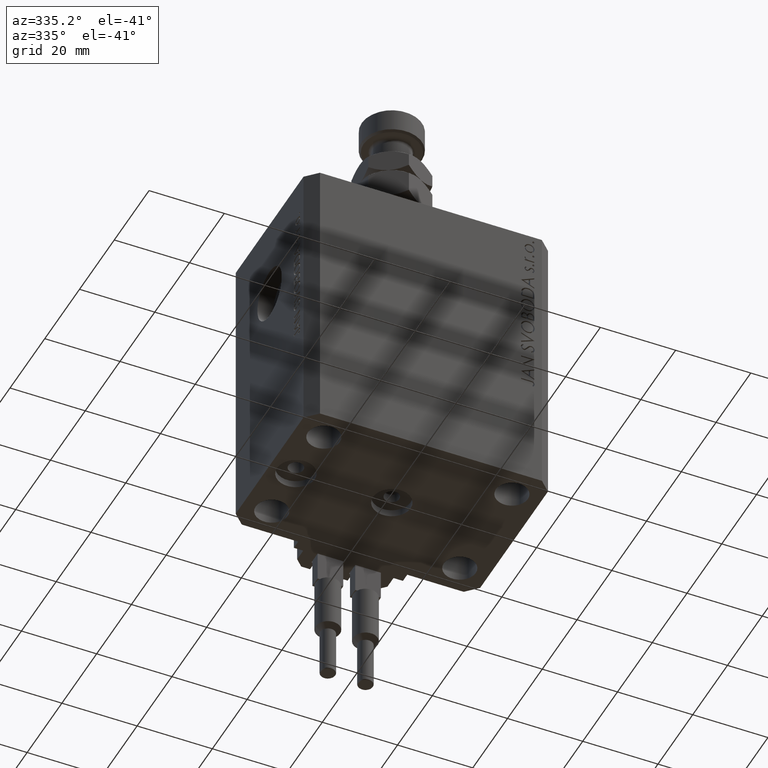
[diagram: clean part render]
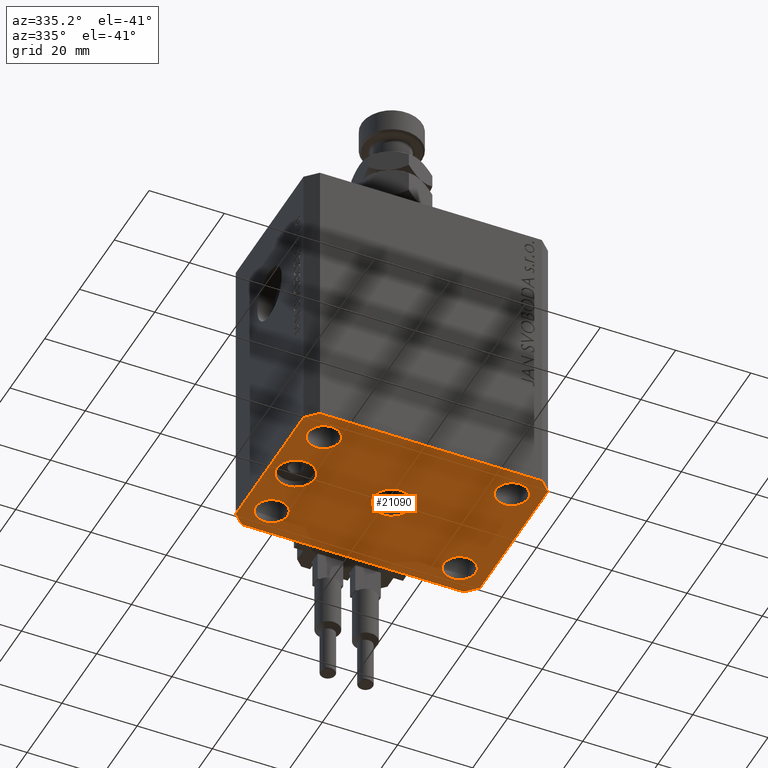
[diagram: same view with one face highlighted and labeled with its STEP entity id]
A machine part, auxiliary view. The second image highlights one B-rep face of the part: STEP entity #21090.
In plain terms, the highlighted planar face has unit normal (0, 0, 1).
Its self-contained STEP definition (entity closure, byte-faithful):
#51 = CIRCLE ( 'NONE', #33070, 4.999999999996659561 ) ;
#324 = CARTESIAN_POINT ( 'NONE',  ( 0.000000000000000000, 0.000000000000000000, -77.00000000000000000 ) ) ;
#368 = CARTESIAN_POINT ( 'NONE',  ( -20.74999999997862687, 14.99999999999999645, -77.00000000000000000 ) ) ;
#450 = PLANE ( 'NONE',  #46532 ) ;
#595 = ORIENTED_EDGE ( 'NONE', *, *, #40347, .F. ) ;
#802 = CARTESIAN_POINT ( 'NONE',  ( -24.99999999999999289, -15.00000000000000355, -77.00000000000000000 ) ) ;
#923 = ORIENTED_EDGE ( 'NONE', *, *, #10168, .F. ) ;
#1020 = VECTOR ( 'NONE', #2068, 1000.000000000000000 ) ;
#1206 = VERTEX_POINT ( 'NONE', #16178 ) ;
#1693 = DIRECTION ( 'NONE',  ( 0.7071067811865474617, -0.7071067811865474617, 0.000000000000000000 ) ) ;
#2068 = DIRECTION ( 'NONE',  ( -1.000000000000000000, -3.528251137580330676E-16, 0.000000000000000000 ) ) ;
#2454 = CARTESIAN_POINT ( 'NONE',  ( -25.00000000000000000, 14.99999999999999645, -77.00000000000000000 ) ) ;
#2710 = VERTEX_POINT ( 'NONE', #45243 ) ;
#3738 = ORIENTED_EDGE ( 'NONE', *, *, #12498, .F. ) ;
#3762 = EDGE_CURVE ( 'NONE', #33556, #30594, #42824, .T. ) ;
#4198 = ORIENTED_EDGE ( 'NONE', *, *, #13610, .F. ) ;
#4247 = DIRECTION ( 'NONE',  ( 0.000000000000000000, 0.000000000000000000, 1.000000000000000000 ) ) ;
#4544 = DIRECTION ( 'NONE',  ( -0.000000000000000000, -0.000000000000000000, -1.000000000000000000 ) ) ;
#4546 = DIRECTION ( 'NONE',  ( -0.7071067811865344721, 0.7071067811865606734, 0.000000000000000000 ) ) ;
#4797 = EDGE_CURVE ( 'NONE', #17378, #39997, #6584, .T. ) ;
#4870 = EDGE_CURVE ( 'NONE', #49466, #42473, #4951, .T. ) ;
#4951 = CIRCLE ( 'NONE', #17070, 5.000000000000000000 ) ;
#4988 = FACE_BOUND ( 'NONE', #34428, .T. ) ;
#5709 = DIRECTION ( 'NONE',  ( 0.000000000000000000, 0.000000000000000000, -1.000000000000000000 ) ) ;
#5865 = EDGE_LOOP ( 'NONE', ( #21011, #47484 ) ) ;
#5999 = DIRECTION ( 'NONE',  ( -0.000000000000000000, -0.000000000000000000, -1.000000000000000000 ) ) ;
#6139 = DIRECTION ( 'NONE',  ( 1.000000000000000000, 0.000000000000000000, 0.000000000000000000 ) ) ;
#6584 = CIRCLE ( 'NONE', #34781, 4.249999999976314058 ) ;
#6620 = CARTESIAN_POINT ( 'NONE',  ( 20.75000000004271072, 14.99999999999999289, -77.00000000000000000 ) ) ;
#6694 = ORIENTED_EDGE ( 'NONE', *, *, #17665, .F. ) ;
#6791 = DIRECTION ( 'NONE',  ( 1.000000000000000000, 0.000000000000000000, 0.000000000000000000 ) ) ;
#7183 = VERTEX_POINT ( 'NONE', #13056 ) ;
#7501 = LINE ( 'NONE', #49901, #30174 ) ;
#8092 = DIRECTION ( 'NONE',  ( -0.000000000000000000, -0.000000000000000000, -1.000000000000000000 ) ) ;
#8297 = VERTEX_POINT ( 'NONE', #20081 ) ;
#8408 = DIRECTION ( 'NONE',  ( -1.000000000000000000, 0.000000000000000000, 0.000000000000000000 ) ) ;
#8537 = FACE_BOUND ( 'NONE', #18745, .T. ) ;
#8826 = DIRECTION ( 'NONE',  ( 0.000000000000000000, -1.000000000000000000, 0.000000000000000000 ) ) ;
#8894 = VECTOR ( 'NONE', #8826, 1000.000000000000000 ) ;
#9602 = EDGE_LOOP ( 'NONE', ( #28885, #35729 ) ) ;
#10168 = EDGE_CURVE ( 'NONE', #23318, #32813, #13258, .T. ) ;
#10203 = EDGE_CURVE ( 'NONE', #1206, #30786, #7501, .T. ) ;
#10228 = VERTEX_POINT ( 'NONE', #18865 ) ;
#10287 = ORIENTED_EDGE ( 'NONE', *, *, #33214, .F. ) ;
#10569 = DIRECTION ( 'NONE',  ( -0.000000000000000000, -0.000000000000000000, -1.000000000000000000 ) ) ;
#11156 = VERTEX_POINT ( 'NONE', #35589 ) ;
#11571 = AXIS2_PLACEMENT_3D ( 'NONE', #20340, #47361, #24361 ) ;
#11622 = CARTESIAN_POINT ( 'NONE',  ( 24.99999999999999289, -15.00000000000000355, -77.00000000000000000 ) ) ;
#11665 = ORIENTED_EDGE ( 'NONE', *, *, #10203, .F. ) ;
#12498 = EDGE_CURVE ( 'NONE', #2710, #34445, #28695, .T. ) ;
#12996 = CARTESIAN_POINT ( 'NONE',  ( 29.24999999995729283, 14.99999999999999289, -77.00000000000000000 ) ) ;
#13056 = CARTESIAN_POINT ( 'NONE',  ( -32.49999999999650413, 19.49999999999949907, -77.00000000000000000 ) ) ;
#13079 = VERTEX_POINT ( 'NONE', #6620 ) ;
#13103 = DIRECTION ( 'NONE',  ( 0.000000000000000000, 0.000000000000000000, -1.000000000000000000 ) ) ;
#13258 = CIRCLE ( 'NONE', #23736, 4.250000000021375790 ) ;
#13540 = CARTESIAN_POINT ( 'NONE',  ( -25.50000000000000000, 0.000000000000000000, -77.00000000000000000 ) ) ;
#13610 = EDGE_CURVE ( 'NONE', #20271, #13079, #14778, .T. ) ;
#14000 = CARTESIAN_POINT ( 'NONE',  ( -29.25000000002137668, 14.99999999999999645, -77.00000000000000000 ) ) ;
#14631 = ORIENTED_EDGE ( 'NONE', *, *, #4870, .F. ) ;
#14778 = CIRCLE ( 'NONE', #11571, 4.249999999957291053 ) ;
#14793 = VECTOR ( 'NONE', #27824, 1000.000000000000000 ) ;
#15084 = DIRECTION ( 'NONE',  ( 0.7071067811865483499, 0.7071067811865466846, 0.000000000000000000 ) ) ;
#15317 = ORIENTED_EDGE ( 'NONE', *, *, #34997, .F. ) ;
#15555 = VECTOR ( 'NONE', #23021, 1000.000000000000000 ) ;
#15728 = DIRECTION ( 'NONE',  ( -0.000000000000000000, -0.000000000000000000, -1.000000000000000000 ) ) ;
#16106 = FACE_BOUND ( 'NONE', #5865, .T. ) ;
#16155 = DIRECTION ( 'NONE',  ( -1.000000000000000000, 0.000000000000000000, 0.000000000000000000 ) ) ;
#16170 = CIRCLE ( 'NONE', #45210, 4.249999999976314058 ) ;
#16178 = CARTESIAN_POINT ( 'NONE',  ( 29.49999999999650413, -22.49999999999949196, -77.00000000000000000 ) ) ;
#16476 = CARTESIAN_POINT ( 'NONE',  ( 24.99999999999999289, -15.00000000000000355, -77.00000000000000000 ) ) ;
#16653 = LINE ( 'NONE', #32031, #8894 ) ;
#17070 = AXIS2_PLACEMENT_3D ( 'NONE', #19763, #31113, #43480 ) ;
#17378 = VERTEX_POINT ( 'NONE', #22321 ) ;
#17665 = EDGE_CURVE ( 'NONE', #8297, #7183, #42952, .T. ) ;
#17799 = EDGE_LOOP ( 'NONE', ( #10287, #37711, #15317, #11665, #35201, #3738, #25630, #6694 ) ) ;
#17872 = DIRECTION ( 'NONE',  ( 1.000000000000000000, 0.000000000000000000, 0.000000000000000000 ) ) ;
#17992 = ORIENTED_EDGE ( 'NONE', *, *, #4797, .F. ) ;
#18745 = EDGE_LOOP ( 'NONE', ( #4198, #45997 ) ) ;
#18865 = CARTESIAN_POINT ( 'NONE',  ( -20.50000000000333955, 6.123233995732674066E-16, -77.00000000000000000 ) ) ;
#19144 = EDGE_LOOP ( 'NONE', ( #17992, #40163 ) ) ;
#19458 = CARTESIAN_POINT ( 'NONE',  ( 20.75000000002367884, -15.00000000000000355, -77.00000000000000000 ) ) ;
#19763 = CARTESIAN_POINT ( 'NONE',  ( 0.000000000000000000, 0.000000000000000000, -77.00000000000000000 ) ) ;
#19895 = FACE_BOUND ( 'NONE', #9602, .T. ) ;
#19951 = EDGE_CURVE ( 'NONE', #30594, #33556, #38413, .T. ) ;
#20018 = CARTESIAN_POINT ( 'NONE',  ( -20.74999999995962341, -15.00000000000000355, -77.00000000000000000 ) ) ;
#20081 = CARTESIAN_POINT ( 'NONE',  ( -29.49999999999650413, 22.49999999999949907, -77.00000000000000000 ) ) ;
#20271 = VERTEX_POINT ( 'NONE', #12996 ) ;
#20340 = CARTESIAN_POINT ( 'NONE',  ( 25.00000000000000000, 14.99999999999999289, -77.00000000000000000 ) ) ;
#20512 = CARTESIAN_POINT ( 'NONE',  ( 32.49999999999651124, -19.49999999999949196, -77.00000000000000000 ) ) ;
#21011 = ORIENTED_EDGE ( 'NONE', *, *, #19951, .F. ) ;
#21090 = ADVANCED_FACE ( 'NONE', ( #4988, #19895, #16106, #39327, #8537, #35524, #23916 ), #450, .F. ) ;
#22207 = EDGE_LOOP ( 'NONE', ( #923, #595 ) ) ;
#22257 = CARTESIAN_POINT ( 'NONE',  ( 29.49999999999707967, 22.49999999999952038, -77.00000000000000000 ) ) ;
#22321 = CARTESIAN_POINT ( 'NONE',  ( 29.24999999997631051, -15.00000000000000355, -77.00000000000000000 ) ) ;
#22595 = AXIS2_PLACEMENT_3D ( 'NONE', #43411, #13103, #16155 ) ;
#23021 = DIRECTION ( 'NONE',  ( 1.000000000000000000, 1.176083712526788232E-16, 0.000000000000000000 ) ) ;
#23219 = DIRECTION ( 'NONE',  ( 1.000000000000000000, 0.000000000000000000, 0.000000000000000000 ) ) ;
#23318 = VERTEX_POINT ( 'NONE', #368 ) ;
#23662 = CARTESIAN_POINT ( 'NONE',  ( 0.000000000000000000, 0.000000000000000000, -77.00000000000000000 ) ) ;
#23736 = AXIS2_PLACEMENT_3D ( 'NONE', #2454, #5999, #17872 ) ;
#23757 = CARTESIAN_POINT ( 'NONE',  ( -30.49999999999665690, 0.000000000000000000, -77.00000000000000000 ) ) ;
#23775 = DIRECTION ( 'NONE',  ( 1.000000000000000000, 0.000000000000000000, 0.000000000000000000 ) ) ;
#23916 = FACE_OUTER_BOUND ( 'NONE', #17799, .T. ) ;
#24361 = DIRECTION ( 'NONE',  ( 1.000000000000000000, 0.000000000000000000, 0.000000000000000000 ) ) ;
#25630 = ORIENTED_EDGE ( 'NONE', *, *, #27809, .F. ) ;
#26262 = EDGE_CURVE ( 'NONE', #10228, #37168, #44372, .T. ) ;
#26432 = CARTESIAN_POINT ( 'NONE',  ( -29.25000000004036593, -15.00000000000000355, -77.00000000000000000 ) ) ;
#27809 = EDGE_CURVE ( 'NONE', #7183, #2710, #16653, .T. ) ;
#27824 = DIRECTION ( 'NONE',  ( 1.334402673828349134E-14, 1.000000000000000000, 0.000000000000000000 ) ) ;
#28576 = LINE ( 'NONE', #37137, #1020 ) ;
#28695 = LINE ( 'NONE', #39826, #30179 ) ;
#28885 = ORIENTED_EDGE ( 'NONE', *, *, #39187, .F. ) ;
#29665 = DIRECTION ( 'NONE',  ( -1.000000000000000000, 0.000000000000000000, 0.000000000000000000 ) ) ;
#30174 = VECTOR ( 'NONE', #15084, 1000.000000000000000 ) ;
#30179 = VECTOR ( 'NONE', #1693, 1000.000000000000114 ) ;
#30584 = LINE ( 'NONE', #41958, #15555 ) ;
#30594 = VERTEX_POINT ( 'NONE', #20018 ) ;
#30786 = VERTEX_POINT ( 'NONE', #37238 ) ;
#30837 = CARTESIAN_POINT ( 'NONE',  ( -29.49999999999650413, 22.49999999999949907, -77.00000000000000000 ) ) ;
#31113 = DIRECTION ( 'NONE',  ( 0.000000000000000000, 0.000000000000000000, -1.000000000000000000 ) ) ;
#31483 = DIRECTION ( 'NONE',  ( 1.000000000000000000, 0.000000000000000000, -0.000000000000000000 ) ) ;
#31820 = CARTESIAN_POINT ( 'NONE',  ( 5.000000000000000000, 6.123233995736765296E-16, -77.00000000000000000 ) ) ;
#31856 = DIRECTION ( 'NONE',  ( -0.000000000000000000, -0.000000000000000000, -1.000000000000000000 ) ) ;
#32031 = CARTESIAN_POINT ( 'NONE',  ( -32.49999999999650413, 19.49999999999949907, -77.00000000000000000 ) ) ;
#32331 = AXIS2_PLACEMENT_3D ( 'NONE', #802, #15728, #23775 ) ;
#32494 = AXIS2_PLACEMENT_3D ( 'NONE', #40722, #43532, #6139 ) ;
#32813 = VERTEX_POINT ( 'NONE', #14000 ) ;
#32984 = VECTOR ( 'NONE', #39415, 1000.000000000000114 ) ;
#33070 = AXIS2_PLACEMENT_3D ( 'NONE', #13540, #5709, #29665 ) ;
#33214 = EDGE_CURVE ( 'NONE', #42266, #8297, #28576, .T. ) ;
#33556 = VERTEX_POINT ( 'NONE', #26432 ) ;
#34428 = EDGE_LOOP ( 'NONE', ( #14631, #45715 ) ) ;
#34445 = VERTEX_POINT ( 'NONE', #41613 ) ;
#34781 = AXIS2_PLACEMENT_3D ( 'NONE', #16476, #31856, #35153 ) ;
#34936 = EDGE_CURVE ( 'NONE', #42473, #49466, #48621, .T. ) ;
#34997 = EDGE_CURVE ( 'NONE', #30786, #11156, #47763, .T. ) ;
#35153 = DIRECTION ( 'NONE',  ( 1.000000000000000000, 0.000000000000000000, 0.000000000000000000 ) ) ;
#35201 = ORIENTED_EDGE ( 'NONE', *, *, #44497, .F. ) ;
#35524 = FACE_BOUND ( 'NONE', #22207, .T. ) ;
#35589 = CARTESIAN_POINT ( 'NONE',  ( 32.49999999999702993, 19.49999999999945999, -77.00000000000000000 ) ) ;
#35729 = ORIENTED_EDGE ( 'NONE', *, *, #26262, .F. ) ;
#35745 = VECTOR ( 'NONE', #4546, 1000.000000000000000 ) ;
#36121 = EDGE_CURVE ( 'NONE', #39997, #17378, #16170, .T. ) ;
#36769 = AXIS2_PLACEMENT_3D ( 'NONE', #42434, #8092, #38626 ) ;
#37137 = CARTESIAN_POINT ( 'NONE',  ( 29.49999999999707967, 22.49999999999952038, -77.00000000000000000 ) ) ;
#37168 = VERTEX_POINT ( 'NONE', #23757 ) ;
#37238 = CARTESIAN_POINT ( 'NONE',  ( 32.49999999999651124, -19.49999999999949196, -77.00000000000000000 ) ) ;
#37570 = CARTESIAN_POINT ( 'NONE',  ( -25.00000000000000000, 14.99999999999999645, -77.00000000000000000 ) ) ;
#37711 = ORIENTED_EDGE ( 'NONE', *, *, #46931, .F. ) ;
#38413 = CIRCLE ( 'NONE', #36769, 4.250000000040370374 ) ;
#38626 = DIRECTION ( 'NONE',  ( 1.000000000000000000, 0.000000000000000000, 0.000000000000000000 ) ) ;
#39187 = EDGE_CURVE ( 'NONE', #37168, #10228, #51, .T. ) ;
#39327 = FACE_BOUND ( 'NONE', #19144, .T. ) ;
#39415 = DIRECTION ( 'NONE',  ( -0.7071067811865474617, -0.7071067811865474617, 0.000000000000000000 ) ) ;
#39574 = CIRCLE ( 'NONE', #40366, 4.250000000021375790 ) ;
#39670 = CARTESIAN_POINT ( 'NONE',  ( -5.000000000000000000, 0.000000000000000000, -77.00000000000000000 ) ) ;
#39826 = CARTESIAN_POINT ( 'NONE',  ( -32.49999999999650413, -19.49999999999949907, -77.00000000000000000 ) ) ;
#39997 = VERTEX_POINT ( 'NONE', #19458 ) ;
#40163 = ORIENTED_EDGE ( 'NONE', *, *, #36121, .F. ) ;
#40347 = EDGE_CURVE ( 'NONE', #32813, #23318, #39574, .T. ) ;
#40366 = AXIS2_PLACEMENT_3D ( 'NONE', #37570, #10569, #6791 ) ;
#40722 = CARTESIAN_POINT ( 'NONE',  ( 25.00000000000000000, 14.99999999999999289, -77.00000000000000000 ) ) ;
#41613 = CARTESIAN_POINT ( 'NONE',  ( -29.49999999999650413, -22.49999999999949907, -77.00000000000000000 ) ) ;
#41958 = CARTESIAN_POINT ( 'NONE',  ( -29.49999999999650413, -22.49999999999949907, -77.00000000000000000 ) ) ;
#42266 = VERTEX_POINT ( 'NONE', #22257 ) ;
#42434 = CARTESIAN_POINT ( 'NONE',  ( -24.99999999999999289, -15.00000000000000355, -77.00000000000000000 ) ) ;
#42473 = VERTEX_POINT ( 'NONE', #31820 ) ;
#42735 = DIRECTION ( 'NONE',  ( 0.000000000000000000, 0.000000000000000000, -1.000000000000000000 ) ) ;
#42824 = CIRCLE ( 'NONE', #32331, 4.250000000040370374 ) ;
#42952 = LINE ( 'NONE', #30837, #32984 ) ;
#43167 = LINE ( 'NONE', #46208, #35745 ) ;
#43411 = CARTESIAN_POINT ( 'NONE',  ( -25.50000000000000000, 0.000000000000000000, -77.00000000000000000 ) ) ;
#43480 = DIRECTION ( 'NONE',  ( -1.000000000000000000, 0.000000000000000000, 0.000000000000000000 ) ) ;
#43532 = DIRECTION ( 'NONE',  ( -0.000000000000000000, -0.000000000000000000, -1.000000000000000000 ) ) ;
#44372 = CIRCLE ( 'NONE', #22595, 4.999999999996659561 ) ;
#44497 = EDGE_CURVE ( 'NONE', #34445, #1206, #30584, .T. ) ;
#45210 = AXIS2_PLACEMENT_3D ( 'NONE', #11622, #4544, #23219 ) ;
#45243 = CARTESIAN_POINT ( 'NONE',  ( -32.49999999999650413, -19.49999999999949907, -77.00000000000000000 ) ) ;
#45563 = EDGE_CURVE ( 'NONE', #13079, #20271, #47044, .T. ) ;
#45715 = ORIENTED_EDGE ( 'NONE', *, *, #34936, .F. ) ;
#45997 = ORIENTED_EDGE ( 'NONE', *, *, #45563, .F. ) ;
#46208 = CARTESIAN_POINT ( 'NONE',  ( 32.49999999999702993, 19.49999999999945999, -77.00000000000000000 ) ) ;
#46532 = AXIS2_PLACEMENT_3D ( 'NONE', #23662, #4247, #31483 ) ;
#46931 = EDGE_CURVE ( 'NONE', #11156, #42266, #43167, .T. ) ;
#47044 = CIRCLE ( 'NONE', #32494, 4.249999999957291053 ) ;
#47361 = DIRECTION ( 'NONE',  ( -0.000000000000000000, -0.000000000000000000, -1.000000000000000000 ) ) ;
#47484 = ORIENTED_EDGE ( 'NONE', *, *, #3762, .F. ) ;
#47763 = LINE ( 'NONE', #20512, #14793 ) ;
#47835 = AXIS2_PLACEMENT_3D ( 'NONE', #324, #42735, #8408 ) ;
#48621 = CIRCLE ( 'NONE', #47835, 5.000000000000000000 ) ;
#49466 = VERTEX_POINT ( 'NONE', #39670 ) ;
#49901 = CARTESIAN_POINT ( 'NONE',  ( 29.49999999999650413, -22.49999999999949196, -77.00000000000000000 ) ) ;